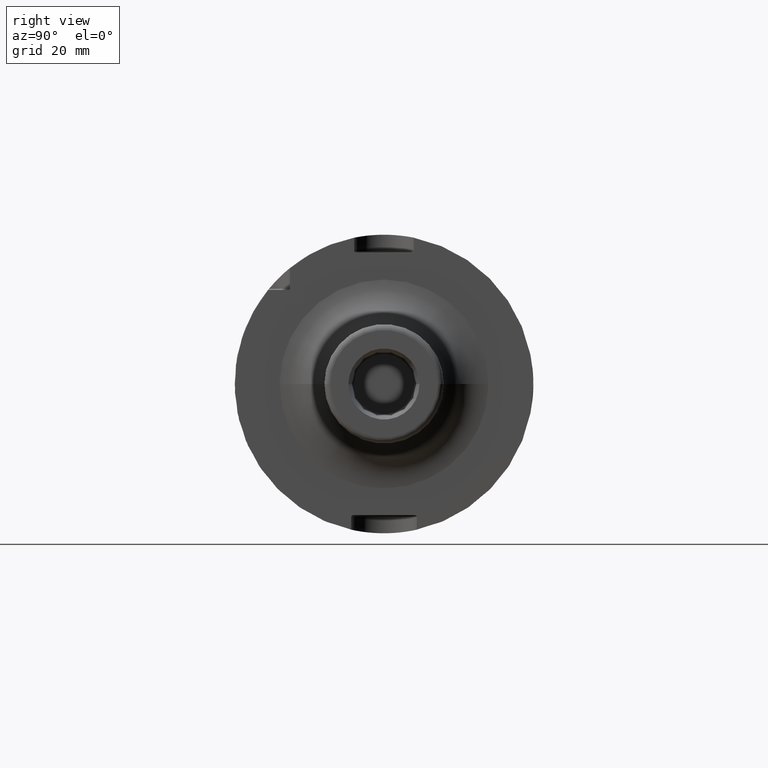
[diagram: clean part render]
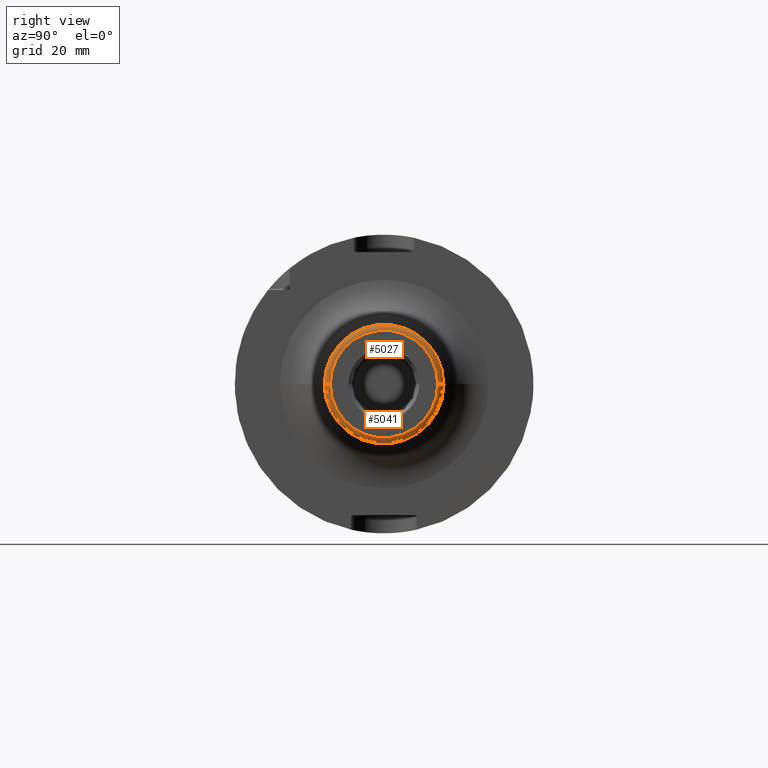
[diagram: same view with one multi-face feature highlighted, each face labeled with its STEP entity id]
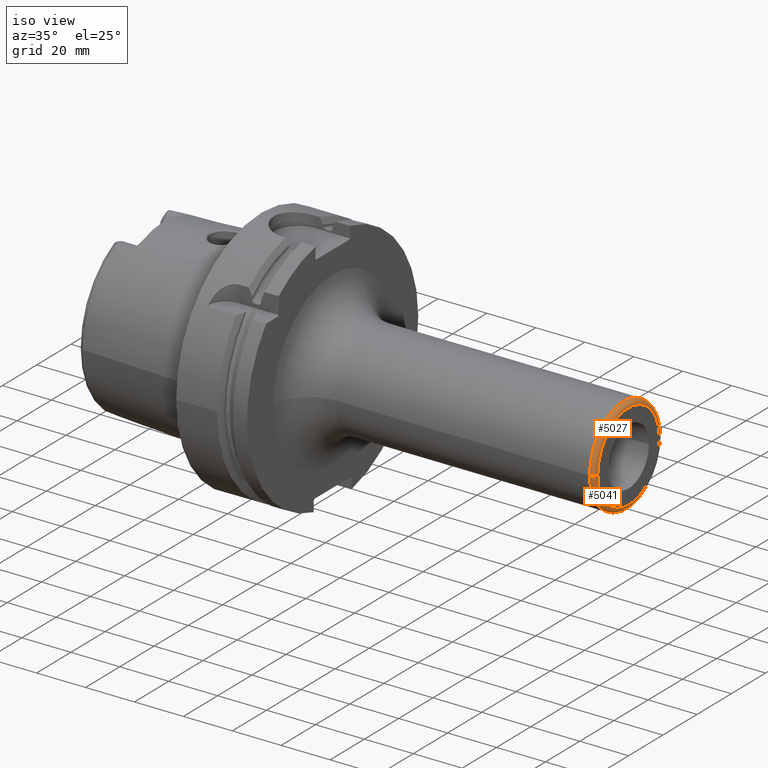
[diagram: same view with one multi-face feature highlighted, each face labeled with its STEP entity id]
A machine part, right view. The highlighted faces form ONE feature: a constant-radius fillet chain: 2 tangent blend faces with common blend radius 2 mm. The faces share edges in the B-rep.
A second angle (iso view) of the same feature is appended — it is thin or edge-on in the first view.
Their STEP definitions:
[1] entity #5041 (Torus):
#1830=CARTESIAN_POINT('',(1.48E2,-1.8E1,-2.420327827046E-12));
#1831=DIRECTION('',(0.E0,-1.344631871125E-13,1.E0));
#1832=DIRECTION('',(0.E0,-1.E0,-1.344631871125E-13));
#1833=AXIS2_PLACEMENT_3D('',#1830,#1831,#1832);
#1835=CARTESIAN_POINT('',(1.48E2,1.8E1,2.424255240996E-12));
#1836=DIRECTION('',(0.E0,1.346813285896E-13,-1.E0));
#1837=DIRECTION('',(0.E0,1.E0,1.346813285896E-13));
#1838=AXIS2_PLACEMENT_3D('',#1835,#1836,#1837);
#1840=CARTESIAN_POINT('',(1.48E2,0.E0,0.E0));
#1841=DIRECTION('',(-1.E0,0.E0,0.E0));
#1842=DIRECTION('',(0.E0,1.E0,0.E0));
#1843=AXIS2_PLACEMENT_3D('',#1840,#1841,#1842);
#1858=CARTESIAN_POINT('',(1.5E2,0.E0,0.E0));
#1859=DIRECTION('',(-1.E0,0.E0,0.E0));
#1860=DIRECTION('',(0.E0,1.E0,0.E0));
#1861=AXIS2_PLACEMENT_3D('',#1858,#1859,#1860);
#3133=CARTESIAN_POINT('',(1.48E2,2.E1,0.E0));
#3134=CARTESIAN_POINT('',(1.48E2,-2.E1,0.E0));
#3135=VERTEX_POINT('',#3133);
#3136=VERTEX_POINT('',#3134);
#3137=CARTESIAN_POINT('',(1.5E2,1.8E1,0.E0));
#3138=CARTESIAN_POINT('',(1.5E2,-1.8E1,0.E0));
#3139=VERTEX_POINT('',#3137);
#3140=VERTEX_POINT('',#3138);
#5028=CARTESIAN_POINT('',(1.48E2,0.E0,0.E0));
#5029=DIRECTION('',(1.E0,0.E0,0.E0));
#5030=DIRECTION('',(0.E0,9.999931686909E-1,3.696291583140E-3));
#5031=AXIS2_PLACEMENT_3D('',#5028,#5029,#5030);
#5032=TOROIDAL_SURFACE('',#5031,1.8E1,2.E0);
#5034=ORIENTED_EDGE('',*,*,#5033,.T.);
#5035=ORIENTED_EDGE('',*,*,#5023,.T.);
#5037=ORIENTED_EDGE('',*,*,#5036,.F.);
#5038=ORIENTED_EDGE('',*,*,#5019,.F.);
#5039=EDGE_LOOP('',(#5034,#5035,#5037,#5038));
#5040=FACE_OUTER_BOUND('',#5039,.F.);
#5041=ADVANCED_FACE('',(#5040),#5032,.T.);
#1834=CIRCLE('',#1833,2.E0);
#1839=CIRCLE('',#1838,2.E0);
#1844=CIRCLE('',#1843,2.E1);
#1862=CIRCLE('',#1861,1.8E1);
#5019=EDGE_CURVE('',#3135,#3139,#1839,.T.);
#5023=EDGE_CURVE('',#3136,#3140,#1834,.T.);
#5033=EDGE_CURVE('',#3135,#3136,#1844,.T.);
#5036=EDGE_CURVE('',#3139,#3140,#1862,.T.);
[2] entity #5027 (Torus):
#1820=CARTESIAN_POINT('',(1.48E2,0.E0,0.E0));
#1821=DIRECTION('',(-1.E0,0.E0,0.E0));
#1822=DIRECTION('',(0.E0,-1.E0,0.E0));
#1823=AXIS2_PLACEMENT_3D('',#1820,#1821,#1822);
#1830=CARTESIAN_POINT('',(1.48E2,-1.8E1,-2.420327827046E-12));
#1831=DIRECTION('',(0.E0,-1.344631871125E-13,1.E0));
#1832=DIRECTION('',(0.E0,-1.E0,-1.344631871125E-13));
#1833=AXIS2_PLACEMENT_3D('',#1830,#1831,#1832);
#1835=CARTESIAN_POINT('',(1.48E2,1.8E1,2.424255240996E-12));
#1836=DIRECTION('',(0.E0,1.346813285896E-13,-1.E0));
#1837=DIRECTION('',(0.E0,1.E0,1.346813285896E-13));
#1838=AXIS2_PLACEMENT_3D('',#1835,#1836,#1837);
#1863=CARTESIAN_POINT('',(1.5E2,0.E0,0.E0));
#1864=DIRECTION('',(-1.E0,0.E0,0.E0));
#1865=DIRECTION('',(0.E0,-1.E0,0.E0));
#1866=AXIS2_PLACEMENT_3D('',#1863,#1864,#1865);
#3133=CARTESIAN_POINT('',(1.48E2,2.E1,0.E0));
#3134=CARTESIAN_POINT('',(1.48E2,-2.E1,0.E0));
#3135=VERTEX_POINT('',#3133);
#3136=VERTEX_POINT('',#3134);
#3137=CARTESIAN_POINT('',(1.5E2,1.8E1,0.E0));
#3138=CARTESIAN_POINT('',(1.5E2,-1.8E1,0.E0));
#3139=VERTEX_POINT('',#3137);
#3140=VERTEX_POINT('',#3138);
#5013=CARTESIAN_POINT('',(1.48E2,0.E0,0.E0));
#5014=DIRECTION('',(1.E0,0.E0,0.E0));
#5015=DIRECTION('',(0.E0,-9.999931686909E-1,-3.696291583140E-3));
#5016=AXIS2_PLACEMENT_3D('',#5013,#5014,#5015);
#5017=TOROIDAL_SURFACE('',#5016,1.8E1,2.E0);
#5018=ORIENTED_EDGE('',*,*,#5003,.T.);
#5020=ORIENTED_EDGE('',*,*,#5019,.T.);
#5022=ORIENTED_EDGE('',*,*,#5021,.F.);
#5024=ORIENTED_EDGE('',*,*,#5023,.F.);
#5025=EDGE_LOOP('',(#5018,#5020,#5022,#5024));
#5026=FACE_OUTER_BOUND('',#5025,.F.);
#5027=ADVANCED_FACE('',(#5026),#5017,.T.);
#1824=CIRCLE('',#1823,2.E1);
#1834=CIRCLE('',#1833,2.E0);
#1839=CIRCLE('',#1838,2.E0);
#1867=CIRCLE('',#1866,1.8E1);
#5003=EDGE_CURVE('',#3136,#3135,#1824,.T.);
#5019=EDGE_CURVE('',#3135,#3139,#1839,.T.);
#5021=EDGE_CURVE('',#3140,#3139,#1867,.T.);
#5023=EDGE_CURVE('',#3136,#3140,#1834,.T.);